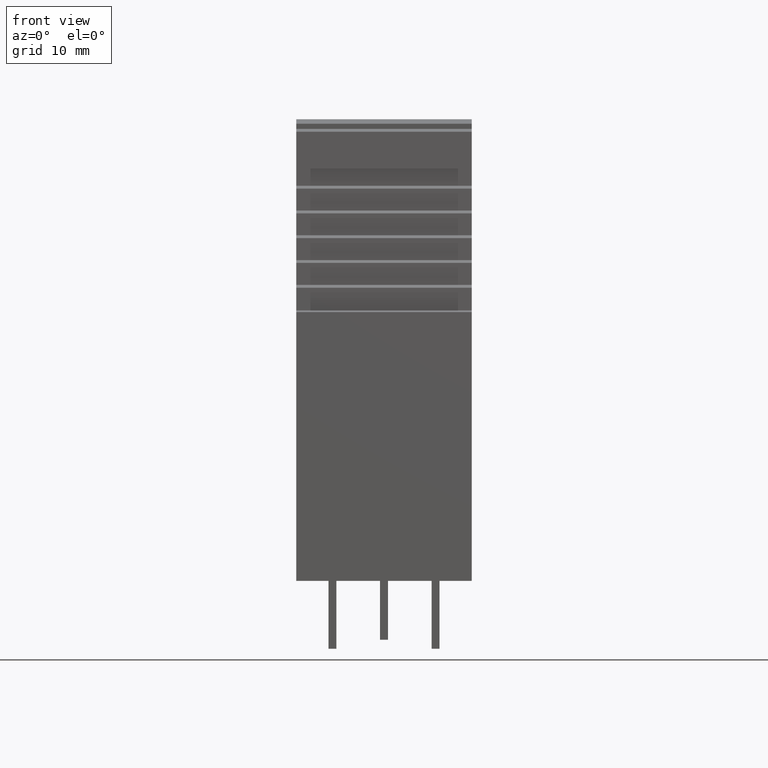
[diagram: clean part render]
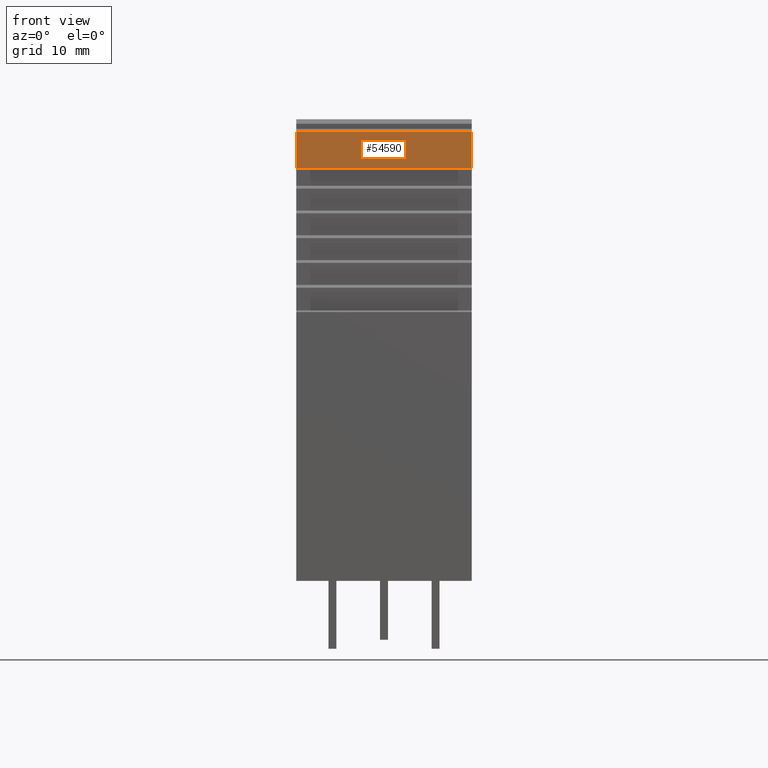
[diagram: same view with one face highlighted and labeled with its STEP entity id]
A machine part, front view. The second image highlights one B-rep face of the part: STEP entity #54590.
In plain terms, the highlighted planar face has unit normal (-0, -1, 0).
Its self-contained STEP definition (entity closure, byte-faithful):
#4690=CARTESIAN_POINT('',(166.676055198063,100.664555168169,
-2.14452701579812));
#4700=VERTEX_POINT('',#4690);
#4730=CARTESIAN_POINT('',(166.676055198064,36.9601229990142,
-2.14452702139915));
#4740=DIRECTION('',(2.37448911110377E-14,-1.,-8.79221417989474E-11));
#4750=VECTOR('',#4740,1.);
#4760=LINE('',#4730,#4750);
#4770=CARTESIAN_POINT('',(166.676055198063,96.9342102263748,
-2.1445270161261));
#4780=VERTEX_POINT('',#4770);
#4790=EDGE_CURVE('',#4700,#4780,#4760,.T.);
#8390=CARTESIAN_POINT('',(166.676055197586,100.664555169123,
-12.9945270151082));
#8400=DIRECTION('',(-4.39608349722675E-11,8.79221417989464E-11,-1.));
#8410=VECTOR('',#8400,1.);
#8420=LINE('',#8390,#8410);
#8430=CARTESIAN_POINT('',(166.676055197285,100.664555169725,
-19.8445270161484));
#8440=VERTEX_POINT('',#8430);
#8450=EDGE_CURVE('',#4700,#8440,#8420,.T.);
#10250=CARTESIAN_POINT('',(166.676055197285,96.9342102279311,
-19.8445270164764));
#10260=VERTEX_POINT('',#10250);
#10290=CARTESIAN_POINT('',(166.676055197286,36.9601230005704,
-19.8445270217494));
#10300=DIRECTION('',(2.37448911110377E-14,-1.,-8.79221417989464E-11));
#10310=VECTOR('',#10300,1.);
#10320=LINE('',#10290,#10310);
#10330=EDGE_CURVE('',#8440,#10260,#10320,.T.);
#54250=CARTESIAN_POINT('',(166.676055197586,96.9342102273288,
-12.9945270154362));
#54260=DIRECTION('',(4.39608349722675E-11,-8.79221417989464E-11,1.));
#54270=VECTOR('',#54260,1.);
#54280=LINE('',#54250,#54270);
#54290=EDGE_CURVE('',#10260,#4780,#54280,.T.);
#54480=CARTESIAN_POINT('',(166.676055198063,96.9342102263748,
-2.1445270157967));
#54490=DIRECTION('',(1.,2.37448949761684E-14,-4.39608349722655E-11));
#54500=DIRECTION('',(2.37448911110377E-14,-1.,-8.79221417989474E-11));
#54510=AXIS2_PLACEMENT_3D('',#54480,#54490,#54500);
#54520=PLANE('',#54510);
#54530=ORIENTED_EDGE('',*,*,#8450,.F.);
#54540=ORIENTED_EDGE('',*,*,#10330,.F.);
#54550=ORIENTED_EDGE('',*,*,#54290,.F.);
#54560=ORIENTED_EDGE('',*,*,#4790,.T.);
#54570=EDGE_LOOP('',(#54560,#54550,#54540,#54530));
#54580=FACE_OUTER_BOUND('',#54570,.T.);
#54590=ADVANCED_FACE('',(#54580),#54520,.T.);